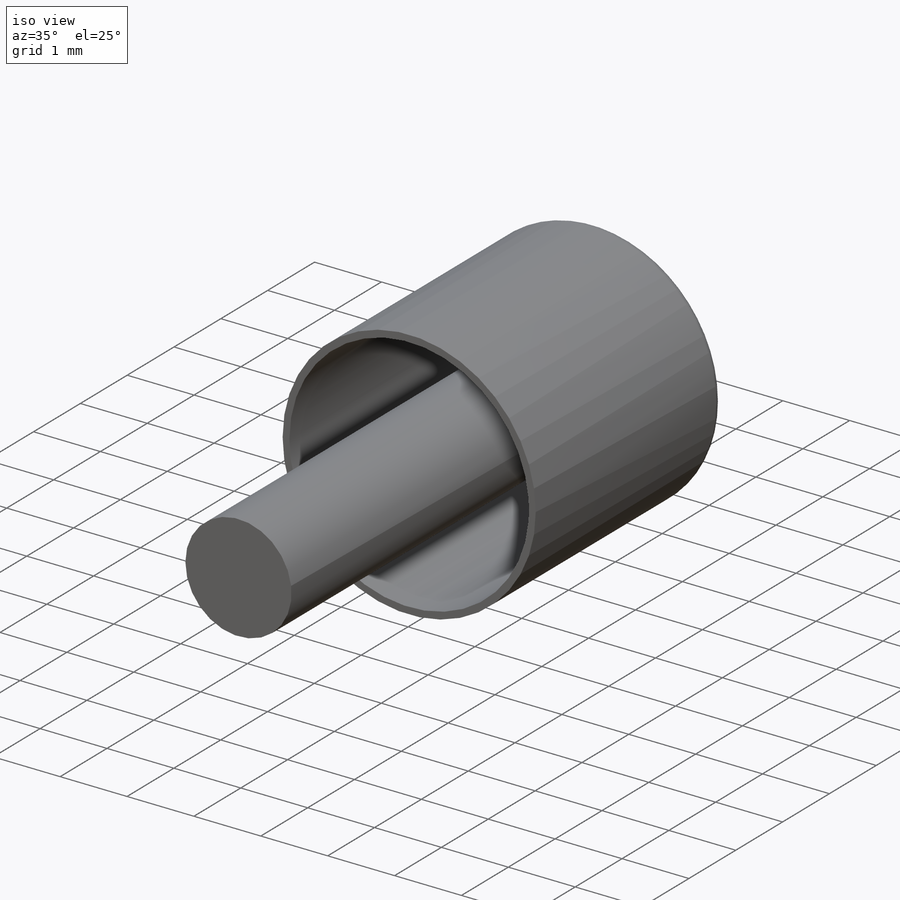
[diagram: iso view]
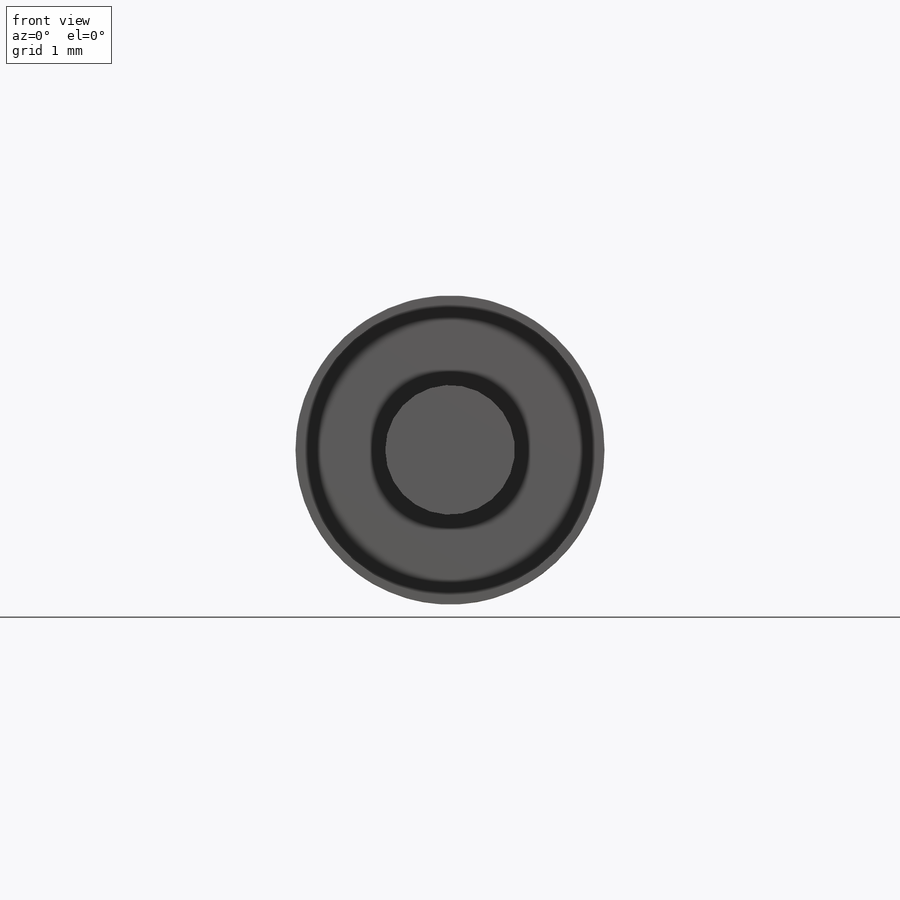
[diagram: front view]
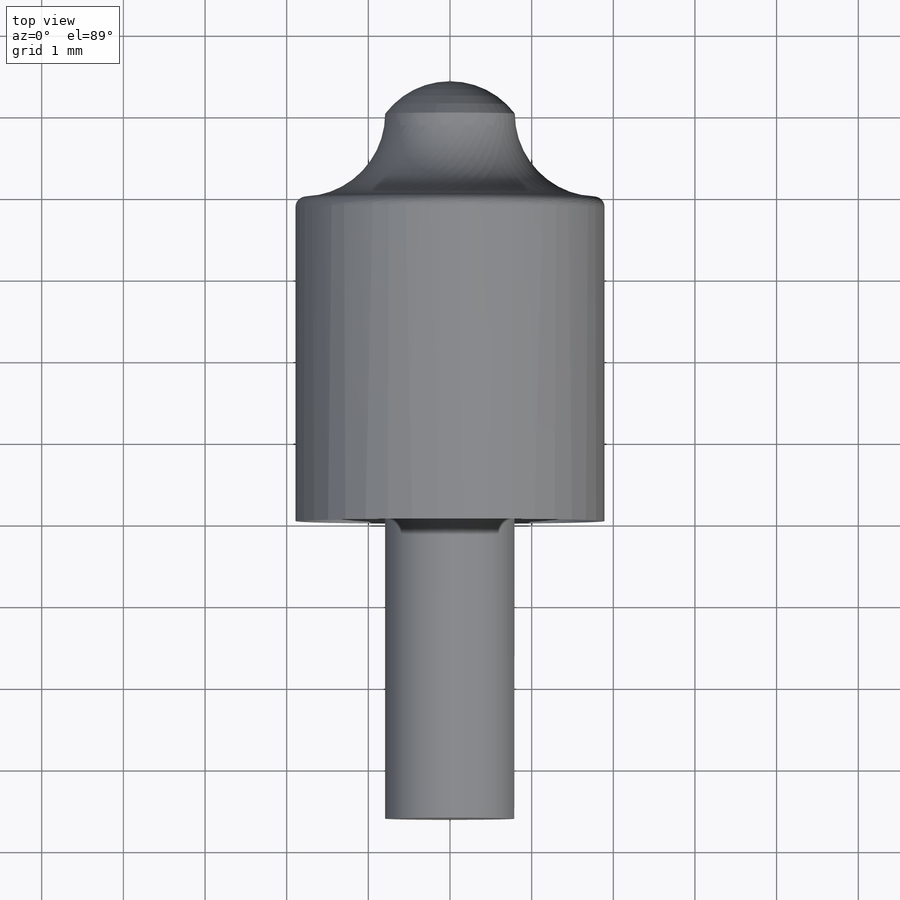
[diagram: top view]
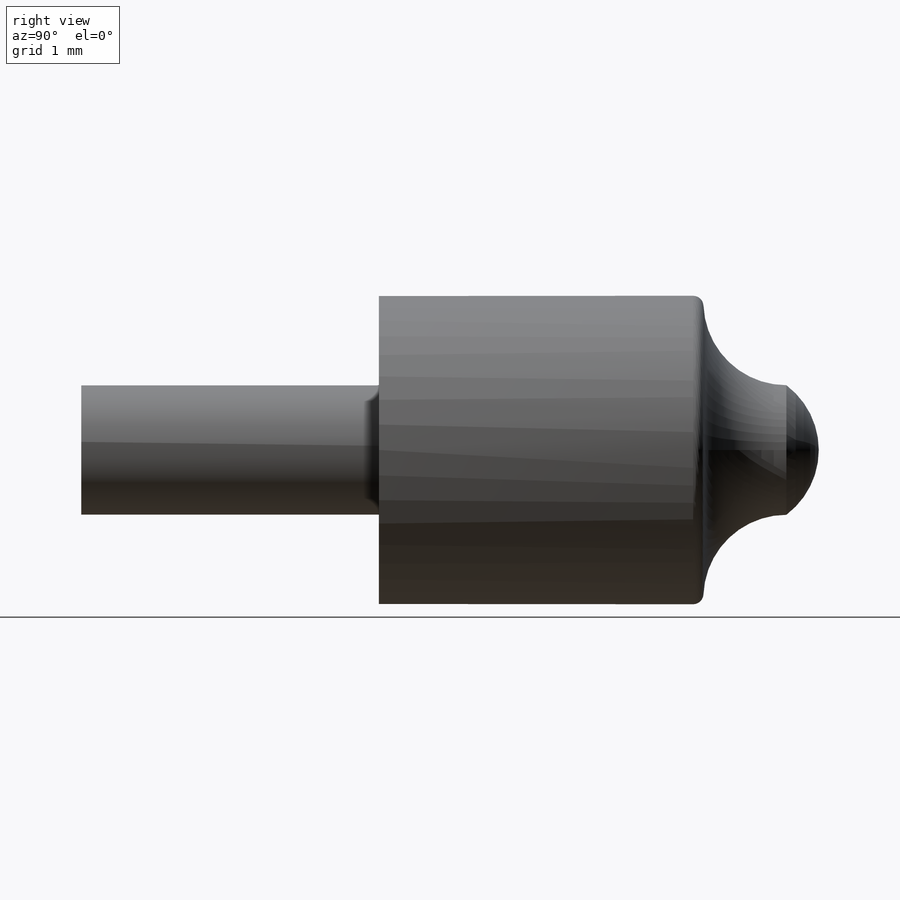
[diagram: right view]
SOLIDWORKS PART (.sldprt)
format: sldprt  version: not decoded by parser v0  size: 221,184 bytes
history: native  units: mm
features: sketch x2, extrude x2, fillet x2, material x1, shell x1, dome x1 (+16 scaffold rows collapsed)
feature tree (25):
  scaffold x16  (default folders/planes/origin — collapsed)
  material  "Material <not specified>"
  sketch  "Sketch1"  dims[D1=3.7846mm]
  extrude  "Extrude1"  Depth=3.9751mm
  shell  "Shell1"  Thickness=0.1016mm
  sketch  "Sketch2"  dims[D1=1.5875mm]
  extrude  "Extrude2"  Depth=1.016mm
  dome  "Dome1"
  fillet  "Fillet1"  Radius=1.016mm
  fillet  "Fillet2"  Radius=0.127mm
decode coverage: 7 of 8 modeling features carry decoded parameters
note: suppression state not decoded; provenance and decode notes live in map.json
